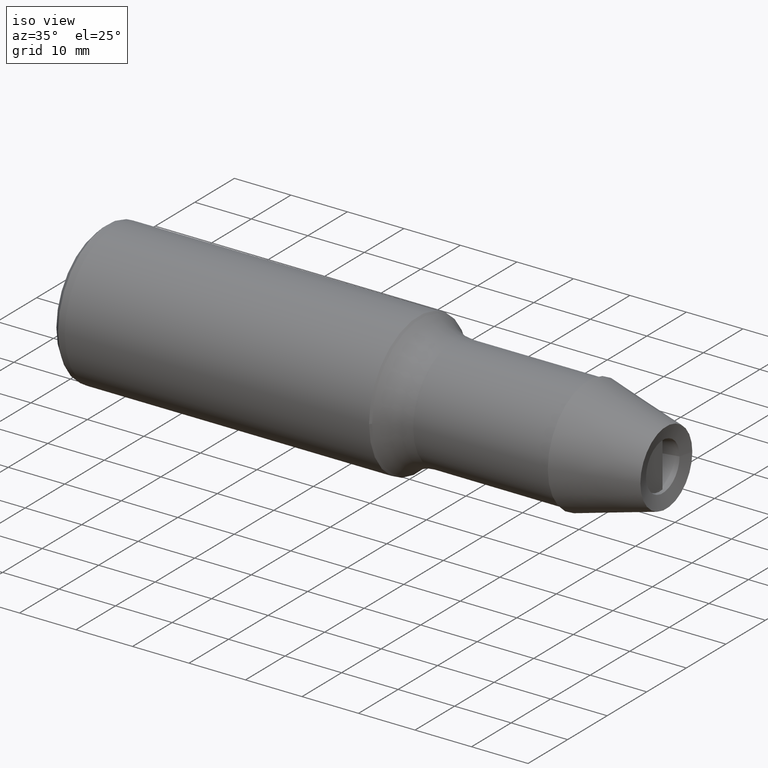
[diagram: clean part render]
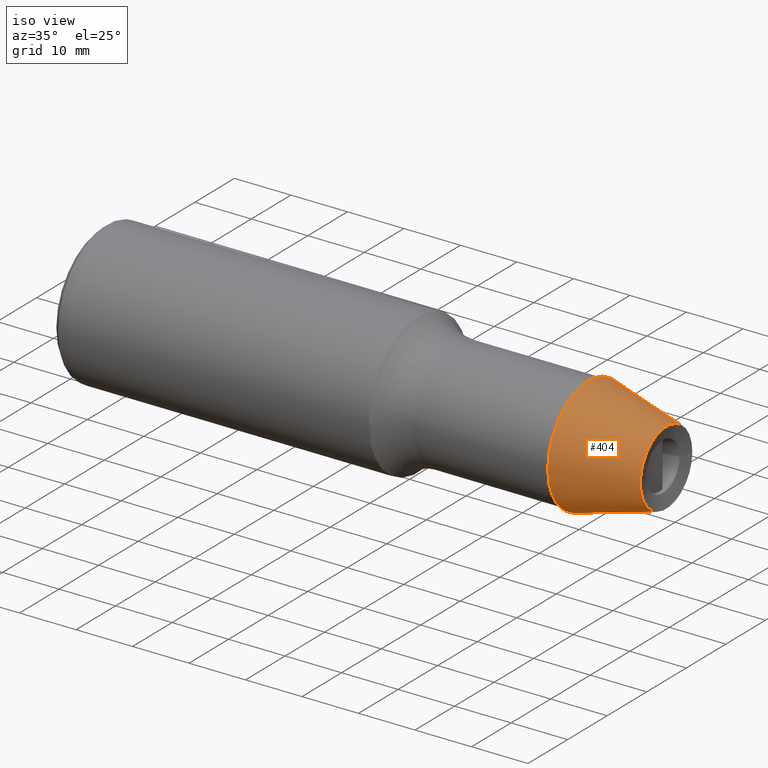
[diagram: same view with one face highlighted and labeled with its STEP entity id]
A machine part, iso view. The second image highlights one B-rep face of the part: STEP entity #404.
In plain terms, the highlighted conical surface has half-angle 14.802 deg.
Its self-contained STEP definition (entity closure, byte-faithful):
#12 = CONICAL_SURFACE ( 'NONE', #1010, 10.25000000000000400, 0.2583445412328708700 ) ;
#22 = VERTEX_POINT ( 'NONE', #167 ) ;
#61 = AXIS2_PLACEMENT_3D ( 'NONE', #63, #649, #1340 ) ;
#63 = CARTESIAN_POINT ( 'NONE',  ( -4.522801941976864800, -0.01562564892832777500, 0.0000000000000000000 ) ) ;
#167 = CARTESIAN_POINT ( 'NONE',  ( -4.545603883953736700, 6.584334962427025300, 0.0000000000000000000 ) ) ;
#187 = EDGE_CURVE ( 'NONE', #22, #22, #305, .T. ) ;
#254 = CIRCLE ( 'NONE', #419, 10.25000000000000500 ) ;
#262 = CARTESIAN_POINT ( 'NONE',  ( -18.37082421371603800, 10.18659254064929300, 0.0000000000000000000 ) ) ;
#290 = EDGE_LOOP ( 'NONE', ( #1168 ) ) ;
#305 = CIRCLE ( 'NONE', #61, 6.600000000000002300 ) ;
#309 = FACE_BOUND ( 'NONE', #787, .T. ) ;
#404 = ADVANCED_FACE ( 'NONE', ( #309, #1183 ), #12, .T. ) ;
#419 = AXIS2_PLACEMENT_3D ( 'NONE', #457, #1244, #554 ) ;
#457 = CARTESIAN_POINT ( 'NONE',  ( -18.33541210685801900, -0.06334628759197283300, 0.0000000000000000000 ) ) ;
#517 = CARTESIAN_POINT ( 'NONE',  ( -18.33541210685801900, -0.06334628759197283300, 0.0000000000000000000 ) ) ;
#554 = DIRECTION ( 'NONE',  ( -0.003454839693465460300, 0.9999940320235377600, 0.0000000000000000000 ) ) ;
#557 = EDGE_CURVE ( 'NONE', #671, #671, #254, .T. ) ;
#649 = DIRECTION ( 'NONE',  ( 0.9999940320235379800, 0.003454839693465523200, -0.0000000000000000000 ) ) ;
#671 = VERTEX_POINT ( 'NONE', #262 ) ;
#733 = DIRECTION ( 'NONE',  ( 0.003454839693465460700, -0.9999940320235377600, 0.0000000000000000000 ) ) ;
#787 = EDGE_LOOP ( 'NONE', ( #1186 ) ) ;
#1010 = AXIS2_PLACEMENT_3D ( 'NONE', #517, #1062, #733 ) ;
#1062 = DIRECTION ( 'NONE',  ( -0.9999940320235379800, -0.003454839693465523200, 0.0000000000000000000 ) ) ;
#1168 = ORIENTED_EDGE ( 'NONE', *, *, #557, .T. ) ;
#1183 = FACE_OUTER_BOUND ( 'NONE', #290, .T. ) ;
#1186 = ORIENTED_EDGE ( 'NONE', *, *, #187, .F. ) ;
#1244 = DIRECTION ( 'NONE',  ( 0.9999940320235379800, 0.003454839693465523200, -0.0000000000000000000 ) ) ;
#1340 = DIRECTION ( 'NONE',  ( -0.003454839693465546600, 0.9999940320235378700, 0.0000000000000000000 ) ) ;